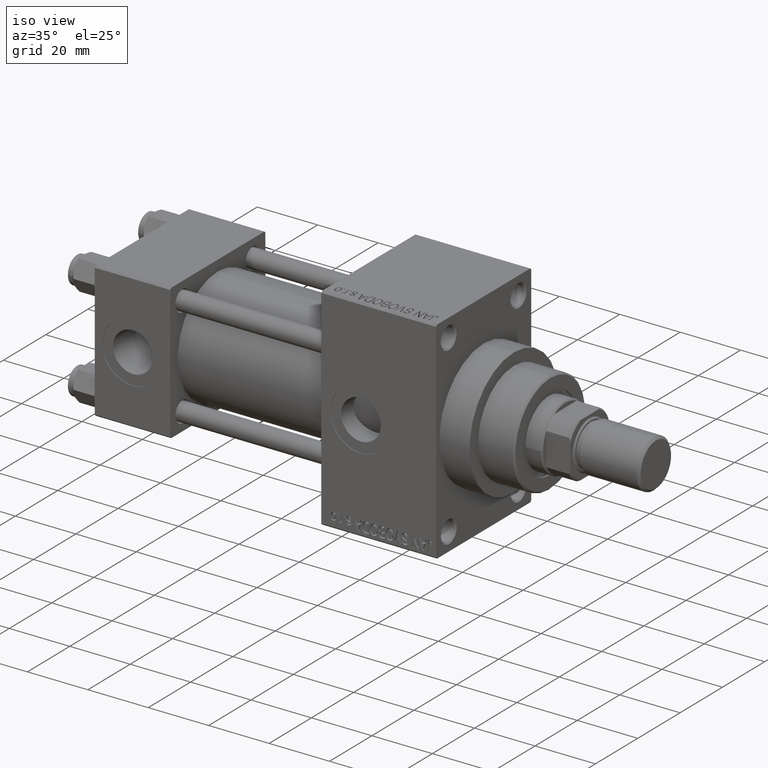
[diagram: clean part render]
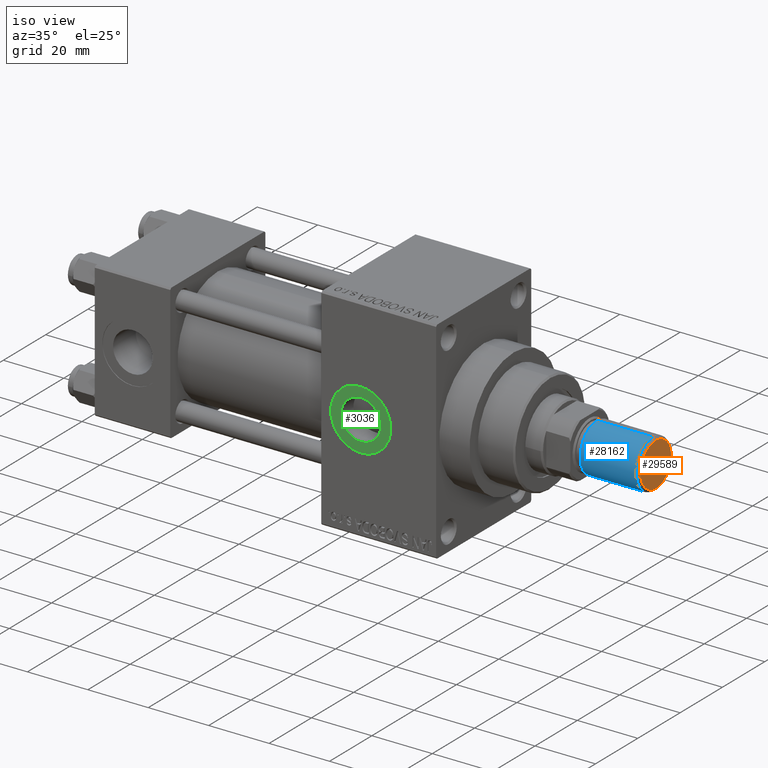
[diagram: same view with three faces highlighted in distinct colors, each labeled with its STEP entity id]
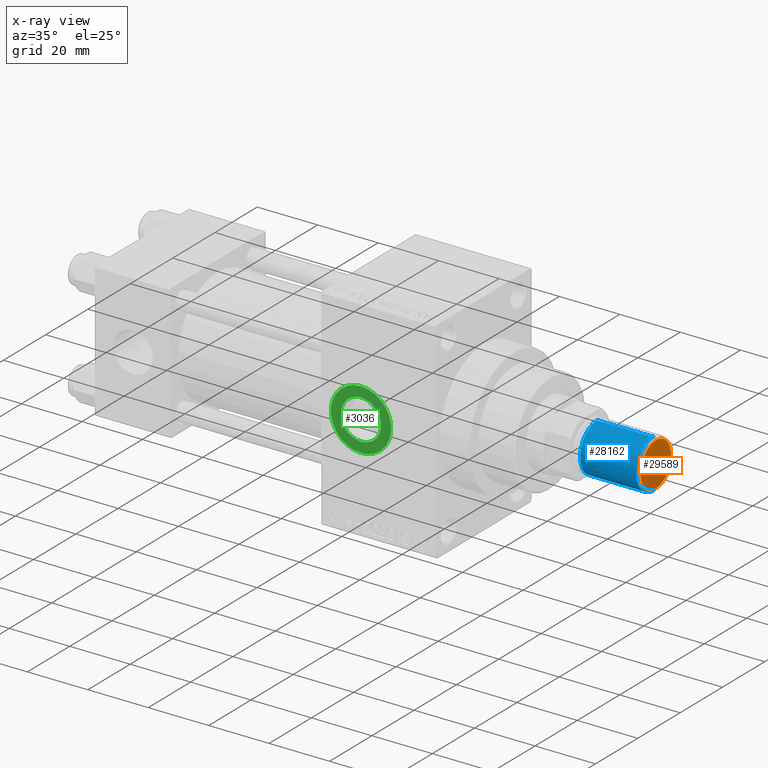
[diagram: x-ray of the same camera — body ghosted, the three highlighted faces saturated]
A machine part, iso view with three faces highlighted in distinct colors.
The next image is the same camera in x-ray (body ghosted, the three faces saturated) — at least one of them is partly hidden behind the body in this view.
Their STEP definitions:

[orange] entity #29589 — the highlighted planar face has unit normal (-1, 0, 0).
#1153 = PLANE ( 'NONE',  #29110 ) ;
#1438 = CIRCLE ( 'NONE', #21420, 7.199999999999987743 ) ;
#5217 = DIRECTION ( 'NONE',  ( 0.000000000000000000, 0.000000000000000000, 1.000000000000000000 ) ) ;
#5747 = CARTESIAN_POINT ( 'NONE',  ( -7.199999999999987743, 9.307315673519877571E-16, 0.000000000000000000 ) ) ;
#11617 = AXIS2_PLACEMENT_3D ( 'NONE', #33386, #45171, #15113 ) ;
#15113 = DIRECTION ( 'NONE',  ( 1.000000000000000000, 0.000000000000000000, 0.000000000000000000 ) ) ;
#17371 = CARTESIAN_POINT ( 'NONE',  ( 7.199999999999987743, 0.000000000000000000, 0.000000000000000000 ) ) ;
#19442 = DIRECTION ( 'NONE',  ( 1.000000000000000000, 0.000000000000000000, -0.000000000000000000 ) ) ;
#21420 = AXIS2_PLACEMENT_3D ( 'NONE', #45880, #33860, #41562 ) ;
#22215 = VERTEX_POINT ( 'NONE', #17371 ) ;
#23747 = CARTESIAN_POINT ( 'NONE',  ( 0.000000000000000000, 0.000000000000000000, 0.000000000000000000 ) ) ;
#27698 = CIRCLE ( 'NONE', #11617, 7.199999999999987743 ) ;
#29087 = EDGE_CURVE ( 'NONE', #22215, #33193, #1438, .T. ) ;
#29110 = AXIS2_PLACEMENT_3D ( 'NONE', #23747, #5217, #19442 ) ;
#29589 = ADVANCED_FACE ( 'NONE', ( #38180 ), #1153, .F. ) ;
#33193 = VERTEX_POINT ( 'NONE', #5747 ) ;
#33386 = CARTESIAN_POINT ( 'NONE',  ( 0.000000000000000000, 0.000000000000000000, 0.000000000000000000 ) ) ;
#33860 = DIRECTION ( 'NONE',  ( -0.000000000000000000, -0.000000000000000000, -1.000000000000000000 ) ) ;
#38180 = FACE_OUTER_BOUND ( 'NONE', #40459, .T. ) ;
#40385 = ORIENTED_EDGE ( 'NONE', *, *, #29087, .T. ) ;
#40459 = EDGE_LOOP ( 'NONE', ( #40385, #46544 ) ) ;
#41562 = DIRECTION ( 'NONE',  ( 1.000000000000000000, 0.000000000000000000, 0.000000000000000000 ) ) ;
#45171 = DIRECTION ( 'NONE',  ( -0.000000000000000000, -0.000000000000000000, -1.000000000000000000 ) ) ;
#45880 = CARTESIAN_POINT ( 'NONE',  ( 0.000000000000000000, 0.000000000000000000, 0.000000000000000000 ) ) ;
#46544 = ORIENTED_EDGE ( 'NONE', *, *, #46766, .T. ) ;
#46766 = EDGE_CURVE ( 'NONE', #33193, #22215, #27698, .T. ) ;

[blue] entity #28162 — the highlighted cylindrical surface (edge-blend (fillet) strip) has radius 8 mm, axis along (1, -0, -0).
#431 = CIRCLE ( 'NONE', #1964, 8.000000000000000000 ) ;
#1964 = AXIS2_PLACEMENT_3D ( 'NONE', #13923, #10303, #14394 ) ;
#2031 = LINE ( 'NONE', #46075, #40841 ) ;
#3876 = CARTESIAN_POINT ( 'NONE',  ( 0.000000000000000000, 0.000000000000000000, 19.50000000000000000 ) ) ;
#4078 = CARTESIAN_POINT ( 'NONE',  ( 0.000000000000000000, 0.000000000000000000, 19.50000000000000000 ) ) ;
#6340 = EDGE_CURVE ( 'NONE', #44830, #46321, #44092, .T. ) ;
#10303 = DIRECTION ( 'NONE',  ( -0.000000000000000000, -0.000000000000000000, 1.000000000000000000 ) ) ;
#10317 = EDGE_LOOP ( 'NONE', ( #35792, #45762, #19027, #39625 ) ) ;
#10561 = LINE ( 'NONE', #47623, #35926 ) ;
#12945 = AXIS2_PLACEMENT_3D ( 'NONE', #4078, #25507, #33674 ) ;
#13923 = CARTESIAN_POINT ( 'NONE',  ( 0.000000000000000000, 0.000000000000000000, 0.8000000000000090372 ) ) ;
#14394 = DIRECTION ( 'NONE',  ( 1.000000000000000000, 0.000000000000000000, 0.000000000000000000 ) ) ;
#15163 = FACE_OUTER_BOUND ( 'NONE', #10317, .T. ) ;
#16850 = CARTESIAN_POINT ( 'NONE',  ( -8.000000000000000000, 0.000000000000000000, 19.50000000000000000 ) ) ;
#17581 = EDGE_CURVE ( 'NONE', #34916, #25349, #431, .T. ) ;
#18738 = AXIS2_PLACEMENT_3D ( 'NONE', #3876, #23109, #37304 ) ;
#19027 = ORIENTED_EDGE ( 'NONE', *, *, #35950, .T. ) ;
#21866 = DIRECTION ( 'NONE',  ( -0.000000000000000000, -0.000000000000000000, -1.000000000000000000 ) ) ;
#22586 = EDGE_CURVE ( 'NONE', #46321, #25349, #10561, .T. ) ;
#23109 = DIRECTION ( 'NONE',  ( 0.000000000000000000, 0.000000000000000000, 1.000000000000000000 ) ) ;
#25349 = VERTEX_POINT ( 'NONE', #28189 ) ;
#25507 = DIRECTION ( 'NONE',  ( -0.000000000000000000, -0.000000000000000000, -1.000000000000000000 ) ) ;
#28162 = ADVANCED_FACE ( 'NONE', ( #15163 ), #37036, .T. ) ;
#28189 = CARTESIAN_POINT ( 'NONE',  ( 8.000000000000000000, 9.797174393178825657E-16, 0.8000000000000090372 ) ) ;
#30663 = DIRECTION ( 'NONE',  ( -0.000000000000000000, -0.000000000000000000, -1.000000000000000000 ) ) ;
#33674 = DIRECTION ( 'NONE',  ( -1.000000000000000000, 0.000000000000000000, 0.000000000000000000 ) ) ;
#34916 = VERTEX_POINT ( 'NONE', #36930 ) ;
#35792 = ORIENTED_EDGE ( 'NONE', *, *, #22586, .F. ) ;
#35926 = VECTOR ( 'NONE', #21866, 1000.000000000000000 ) ;
#35950 = EDGE_CURVE ( 'NONE', #44830, #34916, #2031, .T. ) ;
#36930 = CARTESIAN_POINT ( 'NONE',  ( -8.000000000000000000, 0.000000000000000000, 0.8000000000000090372 ) ) ;
#37036 = CYLINDRICAL_SURFACE ( 'NONE', #12945, 8.000000000000000000 ) ;
#37304 = DIRECTION ( 'NONE',  ( 1.000000000000000000, 0.000000000000000000, 0.000000000000000000 ) ) ;
#39625 = ORIENTED_EDGE ( 'NONE', *, *, #17581, .T. ) ;
#40660 = CARTESIAN_POINT ( 'NONE',  ( 8.000000000000000000, 9.797174393178825657E-16, 19.50000000000000000 ) ) ;
#40841 = VECTOR ( 'NONE', #30663, 1000.000000000000000 ) ;
#44092 = CIRCLE ( 'NONE', #18738, 8.000000000000000000 ) ;
#44830 = VERTEX_POINT ( 'NONE', #16850 ) ;
#45762 = ORIENTED_EDGE ( 'NONE', *, *, #6340, .F. ) ;
#46075 = CARTESIAN_POINT ( 'NONE',  ( -8.000000000000000000, 0.000000000000000000, 19.50000000000000000 ) ) ;
#46321 = VERTEX_POINT ( 'NONE', #40660 ) ;
#47623 = CARTESIAN_POINT ( 'NONE',  ( 8.000000000000000000, 9.797174393178825657E-16, 19.50000000000000000 ) ) ;

[green] entity #3036 — the highlighted planar face has unit normal (0, -1, -0).
#910 = DIRECTION ( 'NONE',  ( 0.000000000000000000, -1.000000000000000000, -8.673617379884036705E-17 ) ) ;
#1123 = CARTESIAN_POINT ( 'NONE',  ( 88.00000000000001421, -22.30000000000000426, -9.999999999999994671 ) ) ;
#1145 = FACE_BOUND ( 'NONE', #26640, .T. ) ;
#3036 = ADVANCED_FACE ( 'NONE', ( #1145, #14886 ), #44717, .T. ) ;
#4721 = CARTESIAN_POINT ( 'NONE',  ( 88.00000000000001421, -22.30000000000000426, 1.734723475976808635E-17 ) ) ;
#4759 = DIRECTION ( 'NONE',  ( 0.000000000000000000, -1.000000000000000000, -8.673617379884036705E-17 ) ) ;
#5817 = VERTEX_POINT ( 'NONE', #34770 ) ;
#6237 = AXIS2_PLACEMENT_3D ( 'NONE', #38581, #19844, #16941 ) ;
#7490 = CARTESIAN_POINT ( 'NONE',  ( 88.00000000000001421, -22.30000000000000426, 6.580000000000002736 ) ) ;
#7642 = DIRECTION ( 'NONE',  ( 0.000000000000000000, 8.673617379884036705E-17, -1.000000000000000000 ) ) ;
#8568 = DIRECTION ( 'NONE',  ( 0.000000000000000000, -1.000000000000000000, -8.673617379884036705E-17 ) ) ;
#9331 = CIRCLE ( 'NONE', #6237, 6.580000000000002736 ) ;
#12167 = VERTEX_POINT ( 'NONE', #18336 ) ;
#13086 = AXIS2_PLACEMENT_3D ( 'NONE', #20390, #4759, #45669 ) ;
#13233 = AXIS2_PLACEMENT_3D ( 'NONE', #15814, #910, #7642 ) ;
#14068 = VERTEX_POINT ( 'NONE', #1123 ) ;
#14886 = FACE_OUTER_BOUND ( 'NONE', #30393, .T. ) ;
#15097 = DIRECTION ( 'NONE',  ( 0.000000000000000000, 0.000000000000000000, -1.000000000000000000 ) ) ;
#15814 = CARTESIAN_POINT ( 'NONE',  ( 88.00000000000001421, -22.30000000000000426, 1.734723475976807403E-17 ) ) ;
#16674 = CARTESIAN_POINT ( 'NONE',  ( 88.00000000000001421, -22.30000000000000426, 1.734723475976807403E-17 ) ) ;
#16889 = ORIENTED_EDGE ( 'NONE', *, *, #45734, .T. ) ;
#16932 = CIRCLE ( 'NONE', #46133, 6.580000000000002736 ) ;
#16941 = DIRECTION ( 'NONE',  ( 0.000000000000000000, 0.000000000000000000, -1.000000000000000000 ) ) ;
#17731 = CIRCLE ( 'NONE', #13086, 9.999999999999994671 ) ;
#18336 = CARTESIAN_POINT ( 'NONE',  ( 88.00000000000001421, -22.30000000000000426, 9.999999999999994671 ) ) ;
#18372 = ORIENTED_EDGE ( 'NONE', *, *, #45317, .F. ) ;
#19844 = DIRECTION ( 'NONE',  ( 0.000000000000000000, -1.000000000000000000, -8.673617379884036705E-17 ) ) ;
#20390 = CARTESIAN_POINT ( 'NONE',  ( 88.00000000000001421, -22.30000000000000426, 1.734723475976807403E-17 ) ) ;
#22084 = ORIENTED_EDGE ( 'NONE', *, *, #47155, .F. ) ;
#24574 = CIRCLE ( 'NONE', #30712, 9.999999999999994671 ) ;
#26640 = EDGE_LOOP ( 'NONE', ( #22084, #18372 ) ) ;
#30393 = EDGE_LOOP ( 'NONE', ( #31028, #16889 ) ) ;
#30712 = AXIS2_PLACEMENT_3D ( 'NONE', #16674, #41950, #31332 ) ;
#31028 = ORIENTED_EDGE ( 'NONE', *, *, #44395, .T. ) ;
#31332 = DIRECTION ( 'NONE',  ( 0.000000000000000000, 0.000000000000000000, -1.000000000000000000 ) ) ;
#34716 = VERTEX_POINT ( 'NONE', #7490 ) ;
#34770 = CARTESIAN_POINT ( 'NONE',  ( 88.00000000000001421, -22.30000000000000426, -6.580000000000002736 ) ) ;
#38581 = CARTESIAN_POINT ( 'NONE',  ( 88.00000000000001421, -22.30000000000000426, 1.734723475976808635E-17 ) ) ;
#41950 = DIRECTION ( 'NONE',  ( 0.000000000000000000, -1.000000000000000000, -8.673617379884036705E-17 ) ) ;
#44395 = EDGE_CURVE ( 'NONE', #14068, #12167, #24574, .T. ) ;
#44717 = PLANE ( 'NONE',  #13233 ) ;
#45317 = EDGE_CURVE ( 'NONE', #34716, #5817, #16932, .T. ) ;
#45669 = DIRECTION ( 'NONE',  ( 0.000000000000000000, 0.000000000000000000, -1.000000000000000000 ) ) ;
#45734 = EDGE_CURVE ( 'NONE', #12167, #14068, #17731, .T. ) ;
#46133 = AXIS2_PLACEMENT_3D ( 'NONE', #4721, #8568, #15097 ) ;
#47155 = EDGE_CURVE ( 'NONE', #5817, #34716, #9331, .T. ) ;